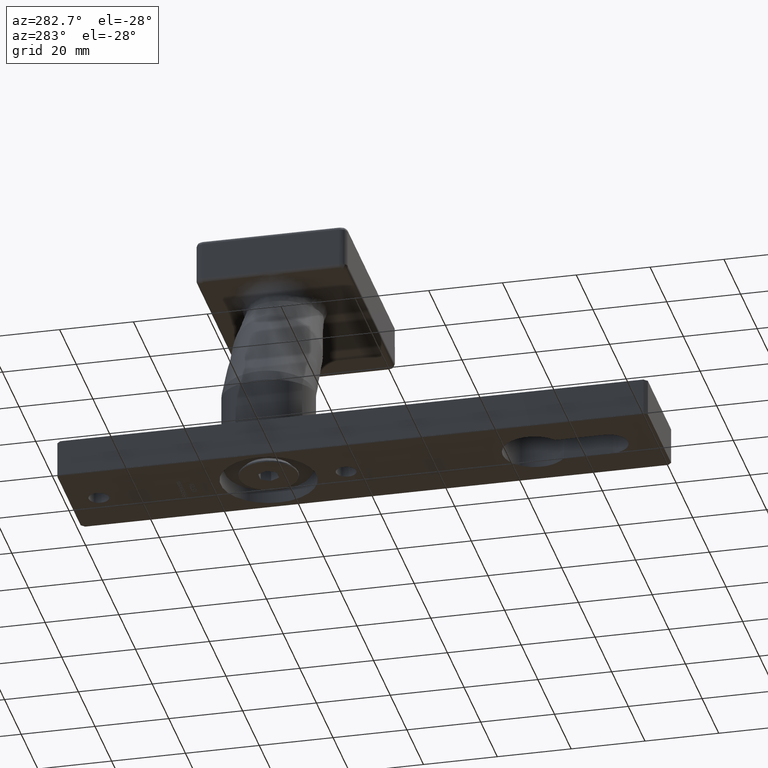
[diagram: clean part render]
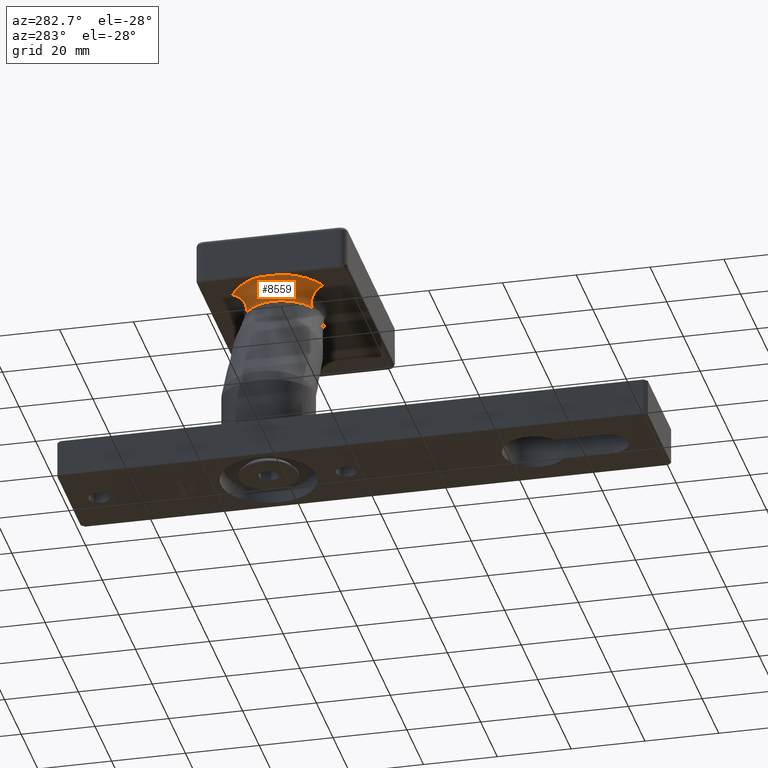
[diagram: same view with one face highlighted and labeled with its STEP entity id]
A machine part, auxiliary view. The second image highlights one B-rep face of the part: STEP entity #8559.
In plain terms, the highlighted face is a freeform B-spline surface patch.
Its self-contained STEP definition (entity closure, byte-faithful):
#45 = CARTESIAN_POINT ( 'NONE',  ( 4.042542119547880120, -5.153737191863888789, 52.89213494729145282 ) ) ;
#82 = CARTESIAN_POINT ( 'NONE',  ( 12.31599355250493133, -8.992921521782777816, 47.01681769696901370 ) ) ;
#112 = ORIENTED_EDGE ( 'NONE', *, *, #12535, .F. ) ;
#167 = CARTESIAN_POINT ( 'NONE',  ( 12.31599355250493133, -8.992921521782777816, 47.01681769696901370 ) ) ;
#263 = CARTESIAN_POINT ( 'NONE',  ( 9.870292012381419511, -11.77616790093112620, 52.48461897648146390 ) ) ;
#318 = CARTESIAN_POINT ( 'NONE',  ( 6.468101262939045526, -8.892341286243901521, 52.72252332921367213 ) ) ;
#422 = CARTESIAN_POINT ( 'NONE',  ( 12.37054231407270244, 8.983236350999282749, 49.76633152380375691 ) ) ;
#572 = CARTESIAN_POINT ( 'NONE',  ( 6.786171144519215659, -3.751802965214265040, 46.64970949677716305 ) ) ;
#582 = CARTESIAN_POINT ( 'NONE',  ( 9.933257321086196967, 11.83985176776301174, 52.48021601318070140 ) ) ;
#672 = CARTESIAN_POINT ( 'NONE',  ( 11.10698094452765261, 4.276055457153937311, 52.39814126208980127 ) ) ;
#713 = CARTESIAN_POINT ( 'NONE',  ( 5.984581105137253054, 0.9669086653049863145, 46.60018907125100895 ) ) ;
#757 = CARTESIAN_POINT ( 'NONE',  ( 4.190109713363929345, 5.405562251814007624, 52.88181601590969194 ) ) ;
#798 = CARTESIAN_POINT ( 'NONE',  ( 10.60743197055949594, 8.081810730765729645, 46.89832308600082200 ) ) ;
#803 = VERTEX_POINT ( 'NONE', #12475 ) ;
#810 = CARTESIAN_POINT ( 'NONE',  ( 7.244939456612621953, 4.605431466890313352, 46.67848962275709823 ) ) ;
#856 = CARTESIAN_POINT ( 'NONE',  ( 3.495860947627186910, -3.526322930853172277, 52.93036261879339577 ) ) ;
#903 = CARTESIAN_POINT ( 'NONE',  ( 13.61070391398345514, -7.489166761206139000, 52.22306389684690231 ) ) ;
#949 = CARTESIAN_POINT ( 'NONE',  ( 9.470641077835535881, -7.183472976621087192, 46.82244462674607632 ) ) ;
#999 = CARTESIAN_POINT ( 'NONE',  ( 8.855092750242379296, -11.12029479090919715, 52.55560862437024383 ) ) ;
#1023 = VERTEX_POINT ( 'NONE', #3042 ) ;
#1044 = CARTESIAN_POINT ( 'NONE',  ( 9.664540156136261828, -7.344801931713387688, 46.83531915648251953 ) ) ;
#1079 = CARTESIAN_POINT ( 'NONE',  ( 6.768182617438063708, -3.713718466022148501, 46.64858767042117194 ) ) ;
#1107 = CARTESIAN_POINT ( 'NONE',  ( 12.40519175471635727, -8.903780847882854843, 49.46880111316510664 ) ) ;
#1144 = ORIENTED_EDGE ( 'NONE', *, *, #4606, .F. ) ;
#1157 = CARTESIAN_POINT ( 'NONE',  ( 12.40381067722646335, -8.840014493499296577, 47.61676260229412350 ) ) ;
#1315 = CARTESIAN_POINT ( 'NONE',  ( 3.430243526255855269, 3.271869030510937471, 52.93495103587785167 ) ) ;
#1444 = CARTESIAN_POINT ( 'NONE',  ( 7.511526953077793500, -9.955394314512934884, 52.64955989720230889 ) ) ;
#1515 = CARTESIAN_POINT ( 'NONE',  ( 11.09915105683650083, 11.59781311276438309, 52.34095684744486476 ) ) ;
#1597 = CARTESIAN_POINT ( 'NONE',  ( 12.31599355250493133, -8.992921521782777816, 47.01681769696901370 ) ) ;
#1697 = CARTESIAN_POINT ( 'NONE',  ( 8.091768442994835553, -5.798235013128826942, 46.73239105526677406 ) ) ;
#1744 = CARTESIAN_POINT ( 'NONE',  ( 10.48399718088366228, 2.339354361970658491, 52.44170453057826364 ) ) ;
#1785 = CARTESIAN_POINT ( 'NONE',  ( 3.052624222068364812, -1.280504398541090882, 52.96135674994798137 ) ) ;
#1833 = CARTESIAN_POINT ( 'NONE',  ( 10.40234937989617769, 1.876852318292917765, 52.44741390099747491 ) ) ;
#1877 = CARTESIAN_POINT ( 'NONE',  ( 3.200403543271365780, -2.249830538464799634, 52.95102301314507542 ) ) ;
#1915 = CARTESIAN_POINT ( 'NONE',  ( 8.934239901695644193, 6.697214093603168550, 46.78710412231193772 ) ) ;
#1953 = CARTESIAN_POINT ( 'NONE',  ( 6.281111619919860445, -2.393640276278628853, 46.61841387222123956 ) ) ;
#1965 = CARTESIAN_POINT ( 'NONE',  ( 7.490272306905688460, -4.990430221857026005, 46.69398124634582814 ) ) ;
#2053 = CARTESIAN_POINT ( 'NONE',  ( 10.62218755856018504, -2.940058586198223800, 52.43204131803094015 ) ) ;
#2079 = CARTESIAN_POINT ( 'NONE',  ( 12.03574202774404256, -9.695326832571119269, 51.09957714590039046 ) ) ;
#2086 = ORIENTED_EDGE ( 'NONE', *, *, #8618, .T. ) ;
#2100 = VERTEX_POINT ( 'NONE', #167 ) ;
#2141 = CARTESIAN_POINT ( 'NONE',  ( 10.71755471380843794, -3.268185866034259757, 52.42537259688749174 ) ) ;
#2174 = CARTESIAN_POINT ( 'NONE',  ( 12.34250296714419193, -8.945456980765376542, 47.16174776677892311 ) ) ;
#2308 = CARTESIAN_POINT ( 'NONE',  ( 3.683463949594658615, -4.232874476556634846, 52.91724413895478563 ) ) ;
#2493 = B_SPLINE_CURVE_WITH_KNOTS ( 'NONE', 3,
 ( #3653, #3464, #11011, #6622 ),
 .UNSPECIFIED., .F., .F.,
 ( 4, 4 ),
 ( 0.000000000000000000, 0.0001249764416995272456 ),
 .UNSPECIFIED. ) ;
#2519 = CARTESIAN_POINT ( 'NONE',  ( 10.96271098794633758, 11.87053409991226793, 52.39656896083165805 ) ) ;
#2558 = CARTESIAN_POINT ( 'NONE',  ( 12.36576580725411212, 8.904673070235238796, 47.31295079628307576 ) ) ;
#2567 = CARTESIAN_POINT ( 'NONE',  ( 8.861359122382053144, 11.12322531557452443, 52.55517043694405288 ) ) ;
#2812 = CARTESIAN_POINT ( 'NONE',  ( 6.901359382691635957, 3.966161128069922714, 46.65693561352333063 ) ) ;
#2858 = CARTESIAN_POINT ( 'NONE',  ( 10.51675958846421821, 2.495189016507820767, 52.43941355985541719 ) ) ;
#2898 = CARTESIAN_POINT ( 'NONE',  ( 6.351776623708961900, -2.625647047925274258, 46.62277338404660298 ) ) ;
#2900 = CARTESIAN_POINT ( 'NONE',  ( 9.868468800876071256, 11.77518120084367226, 52.48474646784952569 ) ) ;
#2908 = CARTESIAN_POINT ( 'NONE',  ( 3.408163854296091699, 3.252333217262747489, 52.93649499694671334 ) ) ;
#2943 = CARTESIAN_POINT ( 'NONE',  ( 7.519131414538449576, 5.032511991293303844, 46.69581363235644034 ) ) ;
#2955 = CARTESIAN_POINT ( 'NONE',  ( 3.262572853121448180, -2.573896851004204844, 52.94667571150655050 ) ) ;
#2996 = CARTESIAN_POINT ( 'NONE',  ( 12.22945883308275761, -9.288415111413661052, 50.46943196552162902 ) ) ;
#3008 = CARTESIAN_POINT ( 'NONE',  ( 7.402274582290419680, 9.847122075813526720, 52.65719956718873362 ) ) ;
#3042 = CARTESIAN_POINT ( 'NONE',  ( 3.430243526255855269, 3.271869030510937471, 52.93495103587785167 ) ) ;
#3052 = CARTESIAN_POINT ( 'NONE',  ( 3.375840015789512982, -2.181905302021735160, 52.93875529992348561 ) ) ;
#3064 =( BOUNDED_SURFACE ( )  B_SPLINE_SURFACE ( 3, 2, ( 
 ( #3764, #4912, #8930 ),
 ( #582, #12292, #7888 ),
 ( #2567, #9987, #3667 ),
 ( #12477, #11341, #10310 ),
 ( #3008, #12330, #10260 ),
 ( #8293, #10206, #13451 ),
 ( #7132, #6037, #1915 ),
 ( #9168, #672, #9253 ),
 ( #10393, #7226, #5156 ),
 ( #3905, #4083, #9346 ),
 ( #13495, #11445, #810 ),
 ( #757, #2858, #2812 ),
 ( #5067, #1744, #12519 ),
 ( #8121, #13402, #6218 ),
 ( #8209, #1833, #5013 ),
 ( #2908, #3991, #7085 ),
 ( #12426, #9305, #4961 ),
 ( #13541, #7053, #713 ),
 ( #9212, #8169, #6121 ),
 ( #11253, #7183, #4040 ),
 ( #1785, #8249, #3938 ),
 ( #1877, #11398, #11299 ),
 ( #2955, #10348, #12377 ),
 ( #6077, #5104, #6172 ),
 ( #856, #10445, #5325 ),
 ( #3137, #10524, #9555 ),
 ( #3094, #13725, #1079 ),
 ( #6312, #2053, #13678 ),
 ( #8506, #2141, #1965 ),
 ( #9479, #9432, #3229 ),
 ( #11659, #9516, #4126 ),
 ( #10614, #11489, #4304 ),
 ( #6357, #5370, #7364 ),
 ( #4219, #6258, #949 ),
 ( #13643, #12692, #1044 ),
 ( #999, #12737, #8419 ),
 ( #11575, #10485, #5275 ),
 ( #7322, #903, #12613 ) ),
 .UNSPECIFIED., .F., .F., .F. ) 
 B_SPLINE_SURFACE_WITH_KNOTS ( ( 4, 2, 2, 2, 2, 2, 2, 2, 2, 2, 2, 2, 2, 2, 2, 2, 2, 2, 4 ),
 ( 3, 3 ),
 ( 0.03537380697316577088, 0.03925474045560836678, 0.04022497382621902096, 0.04119520719682966819, 0.04313567393805096961, 0.04507614067927226409, 0.04604637404988291827, 0.04701660742049356551, 0.04895707416171486692, 0.05089754090293616140, 0.05283800764415745588, 0.05380824101476811006, 0.05477847438537875729, 0.05671894112660005871, 0.05865940786782135319, 0.06059987460904265461, 0.06157010797965330184, 0.06254034135026395602, 0.06642127483270654498 ),
 ( 0.000000000000000000, 1.000000000000000000 ),
 .UNSPECIFIED. ) 
 GEOMETRIC_REPRESENTATION_ITEM ( )  RATIONAL_B_SPLINE_SURFACE ( (
 ( 1.000000000000000000, 0.5846525121130281555, 1.000000000000000000),
 ( 1.000000000000000000, 0.5707568979857259306, 1.000000000000000000),
 ( 1.000000000000000000, 0.5575857227039063835, 1.000000000000000000),
 ( 1.000000000000000000, 0.5422559233421557767, 1.000000000000000000),
 ( 1.000000000000000000, 0.5392474165293741351, 1.000000000000000000),
 ( 1.000000000000000000, 0.5333558913315780137, 1.000000000000000000),
 ( 1.000000000000000000, 0.5304633644936586068, 1.000000000000000000),
 ( 1.000000000000000000, 0.5220621988139317882, 1.000000000000000000),
 ( 1.000000000000000000, 0.5168799014721782159, 1.000000000000000000),
 ( 1.000000000000000000, 0.5074062122402178687, 1.000000000000000000),
 ( 1.000000000000000000, 0.5031145391817841706, 1.000000000000000000),
 ( 1.000000000000000000, 0.4974232480447926541, 1.000000000000000000),
 ( 1.000000000000000000, 0.4956509358255739572, 1.000000000000000000),
 ( 1.000000000000000000, 0.4923748108754665287, 1.000000000000000000),
 ( 1.000000000000000000, 0.4908719823712693331, 1.000000000000000000),
 ( 1.000000000000000000, 0.4868551233327025884, 1.000000000000000000),
 ( 1.000000000000000000, 0.4848047133586637081, 1.000000000000000000),
 ( 1.000000000000000000, 0.4820355427674986037, 1.000000000000000000),
 ( 1.000000000000000000, 0.4813430293142412220, 1.000000000000000000),
 ( 1.000000000000000000, 0.4813210182643692381, 1.000000000000000000),
 ( 1.000000000000000000, 0.4819882237000772118, 1.000000000000000000),
 ( 1.000000000000000000, 0.4840128107812630143, 1.000000000000000000),
 ( 1.000000000000000000, 0.4848635267022397000, 1.000000000000000000),
 ( 1.000000000000000000, 0.4868796271783968899, 1.000000000000000000),
 ( 1.000000000000000000, 0.4880449409423277540, 1.000000000000000000),
 ( 1.000000000000000000, 0.4919894266744037070, 1.000000000000000000),
 ( 1.000000000000000000, 0.4952155092828456340, 1.000000000000000000),
 ( 1.000000000000000000, 0.5027800556031802870, 1.000000000000000000),
 ( 1.000000000000000000, 0.5071523590384898750, 1.000000000000000000),
 ( 1.000000000000000000, 0.5166899703710211567, 1.000000000000000000),
 ( 1.000000000000000000, 0.5218709971138940640, 1.000000000000000000),
 ( 1.000000000000000000, 0.5301894977873757853, 1.000000000000000000),
 ( 1.000000000000000000, 0.5330539051901191927, 1.000000000000000000),
 ( 1.000000000000000000, 0.5389584759499276290, 1.000000000000000000),
 ( 1.000000000000000000, 0.5420085291336464994, 1.000000000000000000),
 ( 1.000000000000000000, 0.5575104236850506600, 1.000000000000000000),
 ( 1.000000000000000000, 0.5707617844079445613, 1.000000000000000000),
 ( 1.000000000000000000, 0.5846523913959710272, 1.000000000000000000) ) ) 
 REPRESENTATION_ITEM ( '' )  SURFACE ( )  );
#3094 = CARTESIAN_POINT ( 'NONE',  ( 4.025191124016884281, -5.060413847897613060, 52.89334824709295191 ) ) ;
#3137 = CARTESIAN_POINT ( 'NONE',  ( 3.786429153211571030, -4.457027595424664312, 52.91004411052472989 ) ) ;
#3229 = CARTESIAN_POINT ( 'NONE',  ( 8.075683686361905700, -5.779112725120456595, 46.73135613765875007 ) ) ;
#3286 = ORIENTED_EDGE ( 'NONE', *, *, #8808, .F. ) ;
#3355 = ORIENTED_EDGE ( 'NONE', *, *, #4885, .F. ) ;
#3392 = CARTESIAN_POINT ( 'NONE',  ( 4.989650479165022467, -6.909370638943700627, 52.82590667913838445 ) ) ;
#3459 = CARTESIAN_POINT ( 'NONE',  ( 3.345183358240699345, 1.091367913552323543, 52.92620764971913871 ) ) ;
#3464 = CARTESIAN_POINT ( 'NONE',  ( 10.80303358146908721, 12.18822255699701174, 52.41878390182683489 ) ) ;
#3467 = CARTESIAN_POINT ( 'NONE',  ( 11.49255668141538322, 10.80628879843630941, 52.03307886548293482 ) ) ;
#3474 = B_SPLINE_CURVE_WITH_KNOTS ( 'NONE', 3,
 ( #5750, #2900, #4951, #13395, #13533, #12325, #11388, #13488, #10386, #6073, #7220, #13445, #9162, #5006 ),
 .UNSPECIFIED., .F., .F.,
 ( 4, 2, 2, 2, 2, 2, 4 ),
 ( 1.734723475976807480E-18, 0.002967415202460029367, 0.004451122803690041665, 0.005934830404920055265, 0.008902245607380079861, 0.01038595320861009259, 0.01186966080984010359 ),
 .UNSPECIFIED. ) ;
#3475 = VERTEX_POINT ( 'NONE', #10854 ) ;
#3610 = CARTESIAN_POINT ( 'NONE',  ( 11.36369249718031149, 11.06648281561502500, 52.16021806592834054 ) ) ;
#3653 = CARTESIAN_POINT ( 'NONE',  ( 10.82195695938761304, 12.15057328108254353, 52.41615120799015415 ) ) ;
#3667 = CARTESIAN_POINT ( 'NONE',  ( 10.66055571235282784, 8.119457569562072763, 46.90190524853878173 ) ) ;
#3764 = CARTESIAN_POINT ( 'NONE',  ( 11.09527130415104246, 12.43387479193253498, 52.39896007991119831 ) ) ;
#3905 = CARTESIAN_POINT ( 'NONE',  ( 4.938827484981487714, 6.838081826010930619, 52.82946056909504762 ) ) ;
#3931 = CARTESIAN_POINT ( 'NONE',  ( 6.608217574321636256, 3.327057807514032017, 46.63865909740556503 ) ) ;
#3938 = CARTESIAN_POINT ( 'NONE',  ( 5.981795989446116124, -0.9407910943137437476, 46.60001876500678719 ) ) ;
#3991 = CARTESIAN_POINT ( 'NONE',  ( 10.34028697009840059, 1.424818556906116251, 52.45175372746396647 ) ) ;
#4032 = CARTESIAN_POINT ( 'NONE',  ( 5.943348285726298919, 0.4848196475501403424, 46.59767015596705164 ) ) ;
#4040 = CARTESIAN_POINT ( 'NONE',  ( 5.942565597501761943, -0.4650731985177291028, 46.59762227293646930 ) ) ;
#4072 = CARTESIAN_POINT ( 'NONE',  ( 12.32046660237289259, -9.092872253882886113, 50.05233081090034375 ) ) ;
#4075 = CARTESIAN_POINT ( 'NONE',  ( 6.158700615772970899, -1.921721186343149368, 46.61087589027653877 ) ) ;
#4083 = CARTESIAN_POINT ( 'NONE',  ( 10.72354306631157073, 3.286605333941607032, 52.42495385049203094 ) ) ;
#4116 = CARTESIAN_POINT ( 'NONE',  ( 6.590836435935134574, -3.310357304982623372, 46.63756790075425585 ) ) ;
#4126 = CARTESIAN_POINT ( 'NONE',  ( 8.396399592386311284, -6.151936719011892762, 46.75201684937120206 ) ) ;
#4153 = CARTESIAN_POINT ( 'NONE',  ( 10.77832077936895061, -12.22167922063107248, 52.42112341965302846 ) ) ;
#4219 = CARTESIAN_POINT ( 'NONE',  ( 7.379445535973031767, -9.825612898153643471, 52.65879592961743327 ) ) ;
#4249 = CARTESIAN_POINT ( 'NONE',  ( 11.83852083043216652, -10.10204996346368667, 51.53194083807734671 ) ) ;
#4289 = CARTESIAN_POINT ( 'NONE',  ( 12.43201187589269985, -8.839647839162530829, 49.16541674094136738 ) ) ;
#4304 = CARTESIAN_POINT ( 'NONE',  ( 8.917043559547551013, -6.680494726654574222, 46.78597834464364524 ) ) ;
#4315 = VERTEX_POINT ( 'NONE', #7200 ) ;
#4504 = ORIENTED_EDGE ( 'NONE', *, *, #6267, .F. ) ;
#4591 = CARTESIAN_POINT ( 'NONE',  ( 10.82195695938761304, 12.15057328108254353, 52.41615120799015415 ) ) ;
#4606 = EDGE_CURVE ( 'NONE', #6545, #6220, #2493, .T. ) ;
#4682 = CARTESIAN_POINT ( 'NONE',  ( 12.12105745347031771, 9.517519487696652902, 50.86081306758244835 ) ) ;
#4885 = EDGE_CURVE ( 'NONE', #803, #2100, #8892, .T. ) ;
#4912 = CARTESIAN_POINT ( 'NONE',  ( 13.61070988173913676, 7.489171766520350992, 52.22306347954073402 ) ) ;
#4951 = CARTESIAN_POINT ( 'NONE',  ( 9.043854588782458848, 11.22711336926486858, 52.54240911078454701 ) ) ;
#4961 = CARTESIAN_POINT ( 'NONE',  ( 6.148128790803571775, 1.920951346366076118, 46.61022377011676099 ) ) ;
#5006 = CARTESIAN_POINT ( 'NONE',  ( 3.430243526255855269, 3.271869030510937471, 52.93495103587785167 ) ) ;
#5013 = CARTESIAN_POINT ( 'NONE',  ( 6.508698945366554689, 3.075719827157143538, 46.63248443163389823 ) ) ;
#5015 = EDGE_CURVE ( 'NONE', #4315, #3475, #13036, .T. ) ;
#5016 = FACE_OUTER_BOUND ( 'NONE', #9398, .T. ) ;
#5067 = CARTESIAN_POINT ( 'NONE',  ( 4.058196499262231249, 5.108046916565872841, 52.89104028642501731 ) ) ;
#5104 = CARTESIAN_POINT ( 'NONE',  ( 10.34228001523904616, -1.411264650082871164, 52.45161436016356049 ) ) ;
#5156 = CARTESIAN_POINT ( 'NONE',  ( 8.087426676971075423, 5.793064862306066765, 46.73211171565557009 ) ) ;
#5262 = CARTESIAN_POINT ( 'NONE',  ( 11.09915105683640668, -11.59781311276456428, 52.34095684744491450 ) ) ;
#5275 = CARTESIAN_POINT ( 'NONE',  ( 11.51968004608541207, -8.632426262315627596, 46.96066338547061747 ) ) ;
#5325 = CARTESIAN_POINT ( 'NONE',  ( 6.340317123137388045, -2.589372028971262729, 46.62206577708690247 ) ) ;
#5370 = CARTESIAN_POINT ( 'NONE',  ( 11.45611783264946304, -4.939102110274058433, 52.37372723257796991 ) ) ;
#5443 = CARTESIAN_POINT ( 'NONE',  ( 12.41893208684227190, -8.815549403215754865, 47.77173012098317173 ) ) ;
#5535 = B_SPLINE_CURVE_WITH_KNOTS ( 'NONE', 3,
 ( #4591, #2519, #1515, #3610, #3467, #7786, #5746, #10973, #4682, #10834, #11955, #6820, #422, #8919, #13165, #5655, #7923, #11903, #7880, #5598, #2558, #13013, #12974 ),
 .UNSPECIFIED., .F., .F.,
 ( 4, 2, 2, 2, 2, 2, 1, 2, 2, 2, 2, 4 ),
 ( 0.000000000000000000, 0.0009287373604907565037, 0.001857474720981513007, 0.002786212081472269619, 0.003714949441963026015, 0.004179318122208404429, 0.004643686802453783277, 0.005108055482699161258, 0.005572424162944539239, 0.006501161523435316017, 0.006965530203680704406, 0.007429898883926093663 ),
 .UNSPECIFIED. ) ;
#5598 = CARTESIAN_POINT ( 'NONE',  ( 12.40381067722628217, 8.840014493499712245, 47.61676260229192792 ) ) ;
#5631 = CARTESIAN_POINT ( 'NONE',  ( 6.803126966525676167, -9.257053085944669135, 52.69909604984272988 ) ) ;
#5655 = CARTESIAN_POINT ( 'NONE',  ( 12.44150841875573832, 8.815206548896984629, 49.00985862404439075 ) ) ;
#5746 = CARTESIAN_POINT ( 'NONE',  ( 11.83852083043243653, 10.10204996346316975, 51.53194083807687775 ) ) ;
#5750 = CARTESIAN_POINT ( 'NONE',  ( 10.74853667507223420, 12.25146332492776935, 52.42320612711309025 ) ) ;
#6037 = CARTESIAN_POINT ( 'NONE',  ( 11.37135312540974397, 4.786998731101583360, 52.37965455831544404 ) ) ;
#6073 = CARTESIAN_POINT ( 'NONE',  ( 4.283765035531009069, 5.617695936889130159, 52.87526699780904238 ) ) ;
#6077 = CARTESIAN_POINT ( 'NONE',  ( 3.410304253867869839, -3.211803162499409225, 52.93634532562840178 ) ) ;
#6097 = CARTESIAN_POINT ( 'NONE',  ( 10.80303358146983328, -12.18822255699589441, 52.41878390182675673 ) ) ;
#6113 = CARTESIAN_POINT ( 'NONE',  ( 6.274699219707589037, 2.407334881539604510, 46.61800220123953409 ) ) ;
#6121 = CARTESIAN_POINT ( 'NONE',  ( 5.943861723486531190, 0.4882065368106677239, 46.59770156689246789 ) ) ;
#6161 = CARTESIAN_POINT ( 'NONE',  ( 6.806364316657061764, 3.772816791691715466, 46.65100092502471085 ) ) ;
#6172 = CARTESIAN_POINT ( 'NONE',  ( 6.271130482874227141, -2.358647364694923088, 46.61779855504964587 ) ) ;
#6201 = EDGE_CURVE ( 'NONE', #6545, #6967, #5535, .T. ) ;
#6218 = CARTESIAN_POINT ( 'NONE',  ( 6.598442811940286923, 3.303263924956851394, 46.63805186484079712 ) ) ;
#6220 = VERTEX_POINT ( 'NONE', #11013 ) ;
#6251 = CARTESIAN_POINT ( 'NONE',  ( 9.467948240645123192, 7.190545036819872671, 46.82218784353789687 ) ) ;
#6258 = CARTESIAN_POINT ( 'NONE',  ( 11.65875352673066878, -5.275944161074448857, 52.35955756449389042 ) ) ;
#6267 = EDGE_CURVE ( 'NONE', #2100, #6967, #8709, .T. ) ;
#6312 = CARTESIAN_POINT ( 'NONE',  ( 4.590474663394775057, -6.233906692034186570, 52.85381977134011322 ) ) ;
#6343 = CARTESIAN_POINT ( 'NONE',  ( 11.72874813715277043, -10.32653842932734634, 51.72006139532401647 ) ) ;
#6357 = CARTESIAN_POINT ( 'NONE',  ( 6.914872358970948873, -9.366768244811913391, 52.69128205079966420 ) ) ;
#6545 = VERTEX_POINT ( 'NONE', #11601 ) ;
#6622 = CARTESIAN_POINT ( 'NONE',  ( 10.74853667507223420, 12.25146332492776935, 52.42320612711309025 ) ) ;
#6820 = CARTESIAN_POINT ( 'NONE',  ( 12.32046660237310221, 9.092872253882349654, 50.05233081089906477 ) ) ;
#6900 = CARTESIAN_POINT ( 'NONE',  ( 10.60223948542678940, -8.079373945530916146, 46.89796263983667046 ) ) ;
#6967 = VERTEX_POINT ( 'NONE', #12796 ) ;
#6986 = ORIENTED_EDGE ( 'NONE', *, *, #6201, .T. ) ;
#6997 = CARTESIAN_POINT ( 'NONE',  ( 8.407758581020059907, -6.163808224191554608, 46.75275592814637093 ) ) ;
#7053 = CARTESIAN_POINT ( 'NONE',  ( 10.27913686037367924, 0.5618210536895545948, 52.45602975967565840 ) ) ;
#7085 = CARTESIAN_POINT ( 'NONE',  ( 6.269421712461979546, 2.388499865293028268, 46.61767733551798898 ) ) ;
#7123 = CARTESIAN_POINT ( 'NONE',  ( 8.097315610783507367, 5.804760534563613739, 46.73274821268791612 ) ) ;
#7132 = CARTESIAN_POINT ( 'NONE',  ( 6.712238694255953320, 9.153707140153196420, 52.70545157696560068 ) ) ;
#7183 = CARTESIAN_POINT ( 'NONE',  ( 10.27134869779305326, -0.2705855587212177005, 52.45657436107889282 ) ) ;
#7200 = CARTESIAN_POINT ( 'NONE',  ( 3.430243526260460030, -3.271869030528444355, 52.93495103587752482 ) ) ;
#7217 = CARTESIAN_POINT ( 'NONE',  ( 8.416055359447112139, 6.173336824825615743, 46.75329103207528192 ) ) ;
#7220 = CARTESIAN_POINT ( 'NONE',  ( 4.077415242002534690, 5.166220289404399146, 52.88969638101564641 ) ) ;
#7226 = CARTESIAN_POINT ( 'NONE',  ( 10.96304271747507819, 3.942398586338579758, 52.40820640342590053 ) ) ;
#7256 = CARTESIAN_POINT ( 'NONE',  ( 12.37054258456067934, -8.983235828168844250, 49.76633172401582783 ) ) ;
#7306 = CARTESIAN_POINT ( 'NONE',  ( 10.82195695938682611, -12.15057328108217582, 52.41615120799012573 ) ) ;
#7309 = CARTESIAN_POINT ( 'NONE',  ( 6.106905714533886531, -1.680977476084952071, 46.60769444022923125 ) ) ;
#7322 = CARTESIAN_POINT ( 'NONE',  ( 11.09526121355899164, -12.43386963360475228, 52.39896078551414860 ) ) ;
#7364 = CARTESIAN_POINT ( 'NONE',  ( 9.097210585528312521, -6.851550281542258425, 46.79779559358583896 ) ) ;
#7480 = CARTESIAN_POINT ( 'NONE',  ( 5.540963330116546182, -7.735034461489624924, 52.78735512908785665 ) ) ;
#7529 = CARTESIAN_POINT ( 'NONE',  ( 12.45739211683774350, -8.766971166763115164, 48.54508406048081781 ) ) ;
#7786 = CARTESIAN_POINT ( 'NONE',  ( 11.72874813715316478, 10.32653842932690047, 51.72006139532363278 ) ) ;
#7880 = CARTESIAN_POINT ( 'NONE',  ( 12.41893208684223104, 8.815549403216126123, 47.77173012098099747 ) ) ;
#7888 = CARTESIAN_POINT ( 'NONE',  ( 11.51938806585268793, 8.632294495879245133, 46.96064278970090555 ) ) ;
#7923 = CARTESIAN_POINT ( 'NONE',  ( 12.45739211683773107, 8.766971166763035228, 48.54508406047889224 ) ) ;
#8121 = CARTESIAN_POINT ( 'NONE',  ( 3.815174393594729541, 4.500168193882593037, 52.90803404750613481 ) ) ;
#8169 = CARTESIAN_POINT ( 'NONE',  ( 10.27160083935931212, 0.2840318157015198630, 52.45655672958915261 ) ) ;
#8202 = CARTESIAN_POINT ( 'NONE',  ( 7.258503235646465157, 4.627719972618685951, 46.67934487340016148 ) ) ;
#8209 = CARTESIAN_POINT ( 'NONE',  ( 3.704140723826553572, 4.189651053797466496, 52.91579827805142600 ) ) ;
#8249 = CARTESIAN_POINT ( 'NONE',  ( 10.27860466545405238, -0.5465161104245159773, 52.45606697437306565 ) ) ;
#8293 = CARTESIAN_POINT ( 'NONE',  ( 6.938546668269993667, 9.391089732570616633, 52.68962658182540082 ) ) ;
#8375 = CARTESIAN_POINT ( 'NONE',  ( 6.913621315592139993, 3.990330950929632081, 46.65770285058580669 ) ) ;
#8419 = CARTESIAN_POINT ( 'NONE',  ( 10.65554575688566352, -8.117390289830442640, 46.90155498024605407 ) ) ;
#8506 = CARTESIAN_POINT ( 'NONE',  ( 4.919611715065048685, -6.807013692302884778, 52.83080426662431961 ) ) ;
#8559 = ADVANCED_FACE ( 'NONE', ( #5016 ), #3064, .F. ) ;
#8578 = CARTESIAN_POINT ( 'NONE',  ( 12.44150841875562463, -8.815206548897220884, 49.00985862404615290 ) ) ;
#8618 = EDGE_CURVE ( 'NONE', #4315, #1023, #12166, .T. ) ;
#8709 = B_SPLINE_CURVE_WITH_KNOTS ( 'NONE', 3,
 ( #1597, #9206, #6900, #10069, #12178, #6997, #1697, #9114, #13261, #572, #4116, #2898, #1953, #4075, #7309, #10343, #11481, #4032, #13443, #9295, #6113, #11437, #3931, #6161, #8375, #8202, #2943, #7123, #7217, #11387, #6251, #798, #13632, #9380 ),
 .UNSPECIFIED., .F., .F.,
 ( 4, 2, 2, 2, 2, 2, 2, 2, 2, 2, 2, 2, 2, 2, 2, 2, 4 ),
 ( 0.000000000000000000, 0.002911460854264418582, 0.004367191281396629390, 0.005822921708528839765, 0.007278652135661050140, 0.008734382562793260515, 0.009462247776359365703, 0.01019011298992546916, 0.01164584341705767780, 0.01310157384418988470, 0.01455730427132208987, 0.01528516948488819333, 0.01601303469845429331, 0.01746876512558649674, 0.01892449555271870365, 0.02038022597985090362, 0.02329168683411530355 ),
 .UNSPECIFIED. ) ;
#8808 = EDGE_CURVE ( 'NONE', #3475, #803, #9192, .T. ) ;
#8812 = CARTESIAN_POINT ( 'NONE',  ( 9.043800606289094546, -11.22753386207472559, 52.54241288560822909 ) ) ;
#8892 = B_SPLINE_CURVE_WITH_KNOTS ( 'NONE', 3,
 ( #7306, #11560, #5262, #12645, #13579, #6343, #4249, #2079, #10551, #2996, #10380, #4072, #7256, #1107, #4289, #8578, #7529, #11649, #5443, #1157, #12771, #2174, #82 ),
 .UNSPECIFIED., .F., .F.,
 ( 4, 2, 2, 2, 2, 2, 1, 2, 2, 2, 2, 4 ),
 ( 0.000000000000000000, 0.0009287373604904877299, 0.001857474720980975460, 0.002786212081471462973, 0.003714949441961950920, 0.004179318122207202266, 0.004643686802452455346, 0.005108055482697706692, 0.005572424162942958906, 0.006501161523433464200, 0.006965530203678706872, 0.007429898883923949544 ),
 .UNSPECIFIED. ) ;
#8919 = CARTESIAN_POINT ( 'NONE',  ( 12.40519175471646030, 8.903780847882435623, 49.46880111316355766 ) ) ;
#8930 = CARTESIAN_POINT ( 'NONE',  ( 12.44761915771772642, 9.053492257174882596, 47.02608548926846765 ) ) ;
#9114 = CARTESIAN_POINT ( 'NONE',  ( 7.511163323598893271, -5.020965140561632012, 46.69530749699396210 ) ) ;
#9162 = CARTESIAN_POINT ( 'NONE',  ( 3.557583022380093496, 3.755139485789623865, 52.92604659087938757 ) ) ;
#9168 = CARTESIAN_POINT ( 'NONE',  ( 6.058570393407815224, 8.420449227569532624, 52.75116051731244227 ) ) ;
#9192 = B_SPLINE_CURVE_WITH_KNOTS ( 'NONE', 3,
 ( #10417, #4153, #6097, #9323 ),
 .UNSPECIFIED., .F., .F.,
 ( 4, 4 ),
 ( 0.000000000000000000, 0.0001249764416993572969 ),
 .UNSPECIFIED. ) ;
#9206 = CARTESIAN_POINT ( 'NONE',  ( 11.43168053123738837, -8.580275675416189074, 46.95463468487463388 ) ) ;
#9212 = CARTESIAN_POINT ( 'NONE',  ( 3.005753243790219464, 0.6644961271080798149, 52.96463428803163964 ) ) ;
#9253 = CARTESIAN_POINT ( 'NONE',  ( 8.408262880632245029, 6.165363664499138530, 46.75278307480445505 ) ) ;
#9295 = CARTESIAN_POINT ( 'NONE',  ( 6.151185397215225947, 1.935738557331881271, 46.61041149806563766 ) ) ;
#9305 = CARTESIAN_POINT ( 'NONE',  ( 10.31370274620823579, 1.135310754568033209, 52.45361267748957346 ) ) ;
#9323 = CARTESIAN_POINT ( 'NONE',  ( 10.82195695938682611, -12.15057328108217582, 52.41615120799012573 ) ) ;
#9346 = CARTESIAN_POINT ( 'NONE',  ( 7.505772359913179592, 5.013095023651064963, 46.69496523620557582 ) ) ;
#9380 = CARTESIAN_POINT ( 'NONE',  ( 12.31599355250493133, 8.992921521782784922, 47.01681769696899238 ) ) ;
#9398 = EDGE_LOOP ( 'NONE', ( #12961, #2086, #112, #1144, #6986, #4504, #3355, #3286 ) ) ;
#9432 = CARTESIAN_POINT ( 'NONE',  ( 10.95781000276919670, -3.929965209943533377, 52.40857231048686771 ) ) ;
#9479 = CARTESIAN_POINT ( 'NONE',  ( 5.645723558094652539, -7.889266955838193596, 52.78002958032683978 ) ) ;
#9516 = CARTESIAN_POINT ( 'NONE',  ( 11.10155554659282018, -4.263926377890561170, 52.39852064287548217 ) ) ;
#9555 = CARTESIAN_POINT ( 'NONE',  ( 6.575226725794196092, -3.271773815539301467, 46.63659907591918596 ) ) ;
#9723 = CARTESIAN_POINT ( 'NONE',  ( 4.733170979550686219, -6.477386348663295657, 52.84384147287528322 ) ) ;
#9775 = CARTESIAN_POINT ( 'NONE',  ( 10.74853667507223420, -12.25146332492776935, 52.42320612711309025 ) ) ;
#9987 = CARTESIAN_POINT ( 'NONE',  ( 12.34279742711157724, 6.267624968071125124, 52.31172455534280630 ) ) ;
#10069 = CARTESIAN_POINT ( 'NONE',  ( 9.451939762303441128, -7.177191590422510536, 46.82112514697408301 ) ) ;
#10206 = CARTESIAN_POINT ( 'NONE',  ( 11.46619060528110445, 4.956652728346199410, 52.37302287569352899 ) ) ;
#10260 = CARTESIAN_POINT ( 'NONE',  ( 9.488984126344147896, 7.199015583842461652, 46.82366064974202402 ) ) ;
#10310 = CARTESIAN_POINT ( 'NONE',  ( 9.680308633206964330, 7.357534869277375655, 46.83636938529712523 ) ) ;
#10343 = CARTESIAN_POINT ( 'NONE',  ( 5.983735811536686100, -0.9609729981953158973, 46.60013726745753360 ) ) ;
#10348 = CARTESIAN_POINT ( 'NONE',  ( 10.31472005881626330, -1.119426757445987075, 52.45354154005847391 ) ) ;
#10380 = CARTESIAN_POINT ( 'NONE',  ( 12.26247716776985186, -9.217987714532661414, 50.33241555483171226 ) ) ;
#10386 = CARTESIAN_POINT ( 'NONE',  ( 4.971073075155881149, 6.929968619706620814, 52.82720573777492490 ) ) ;
#10393 = CARTESIAN_POINT ( 'NONE',  ( 5.660299012419097942, 7.908447253015916445, 52.77901036527332224 ) ) ;
#10417 = CARTESIAN_POINT ( 'NONE',  ( 10.74853667507223420, -12.25146332492776935, 52.42320612711309025 ) ) ;
#10445 = CARTESIAN_POINT ( 'NONE',  ( 10.35890627562609190, -1.558204029120824563, 52.45045173877963407 ) ) ;
#10485 = CARTESIAN_POINT ( 'NONE',  ( 12.90682712005943955, -6.898806265112441771, 52.27228375702014773 ) ) ;
#10524 = CARTESIAN_POINT ( 'NONE',  ( 10.41920104405265057, -2.003605362454429883, 52.44623551785564786 ) ) ;
#10551 = CARTESIAN_POINT ( 'NONE',  ( 12.12105745346971553, -9.517519487697107650, 50.86081306758333653 ) ) ;
#10614 = CARTESIAN_POINT ( 'NONE',  ( 6.690861264272877307, -9.130638447580317063, 52.70694643249186129 ) ) ;
#10834 = CARTESIAN_POINT ( 'NONE',  ( 12.22945883308332071, 9.288415111413209857, 50.46943196552055610 ) ) ;
#10854 = CARTESIAN_POINT ( 'NONE',  ( 10.74853667507223420, -12.25146332492776935, 52.42320612711309025 ) ) ;
#10973 = CARTESIAN_POINT ( 'NONE',  ( 12.03574202774434632, 9.695326832570534847, 51.09957714589967992 ) ) ;
#11011 = CARTESIAN_POINT ( 'NONE',  ( 10.77832077934075272, 12.22167922061859180, 52.42112341965216160 ) ) ;
#11013 = CARTESIAN_POINT ( 'NONE',  ( 10.74853667507223420, 12.25146332492776935, 52.42320612711309025 ) ) ;
#11253 = CARTESIAN_POINT ( 'NONE',  ( 3.004151562645296814, -0.6330094258655563078, 52.96474628848785215 ) ) ;
#11299 = CARTESIAN_POINT ( 'NONE',  ( 6.101354535278852076, -1.652599571325308769, 46.60735360612189027 ) ) ;
#11341 = CARTESIAN_POINT ( 'NONE',  ( 11.77704979015235054, 5.458379595130034012, 52.35128548392661685 ) ) ;
#11387 = CARTESIAN_POINT ( 'NONE',  ( 9.103866408454482695, 6.868640811315532169, 46.79817310855449364 ) ) ;
#11388 = CARTESIAN_POINT ( 'NONE',  ( 6.472408960932779287, 8.897345718115504454, 52.72222210562618727 ) ) ;
#11398 = CARTESIAN_POINT ( 'NONE',  ( 10.30383019093767594, -0.9744538710655734626, 52.45430303380059911 ) ) ;
#11437 = CARTESIAN_POINT ( 'NONE',  ( 6.517317199745532363, 3.098501666014589428, 46.63301867292089753 ) ) ;
#11445 = CARTESIAN_POINT ( 'NONE',  ( 10.62933622654687404, 2.965892075157502195, 52.43154143447201676 ) ) ;
#11481 = CARTESIAN_POINT ( 'NONE',  ( 5.943064047289703389, -0.4798062098005730358, 46.59765276693320146 ) ) ;
#11489 = CARTESIAN_POINT ( 'NONE',  ( 11.36254937200578041, -4.770740207453876280, 52.38027017672186503 ) ) ;
#11560 = CARTESIAN_POINT ( 'NONE',  ( 10.96271098794553644, -11.87053409991200326, 52.39656896083162962 ) ) ;
#11575 = CARTESIAN_POINT ( 'NONE',  ( 9.933616776415885141, -11.84003453039165521, 52.48019087761547752 ) ) ;
#11601 = CARTESIAN_POINT ( 'NONE',  ( 10.82195695938761304, 12.15057328108254353, 52.41615120799015415 ) ) ;
#11649 = CARTESIAN_POINT ( 'NONE',  ( 12.45173622040954697, -8.767068644123686028, 48.23555215891587977 ) ) ;
#11659 = CARTESIAN_POINT ( 'NONE',  ( 6.043840616359485551, -8.401975761650160024, 52.75219052366207251 ) ) ;
#11709 = CARTESIAN_POINT ( 'NONE',  ( 3.375840015789759452, 2.181905302003018132, 52.93875529992327955 ) ) ;
#11790 = CARTESIAN_POINT ( 'NONE',  ( 3.430243526260460030, -3.271869030528444355, 52.93495103587752482 ) ) ;
#11903 = CARTESIAN_POINT ( 'NONE',  ( 12.45173622040941730, 8.767068644123721555, 48.23555215891384051 ) ) ;
#11955 = CARTESIAN_POINT ( 'NONE',  ( 12.26247716777006680, 9.217987714532082322, 50.33241555483061802 ) ) ;
#11978 = CARTESIAN_POINT ( 'NONE',  ( 5.837022523497736870, -8.131329478610739514, 52.76665265354812817 ) ) ;
#12073 = CARTESIAN_POINT ( 'NONE',  ( 7.885498499416804030, -10.28918271769243376, 52.62340925920926082 ) ) ;
#12166 = B_SPLINE_CURVE_WITH_KNOTS ( 'NONE', 3,
 ( #12564, #3052, #12921, #3459, #11709, #1315 ),
 .UNSPECIFIED., .F., .F.,
 ( 4, 2, 4 ),
 ( 1.095851745142163513E-15, 0.003272986194878581452, 0.006545972389756066559 ),
 .UNSPECIFIED. ) ;
#12178 = CARTESIAN_POINT ( 'NONE',  ( 9.086906233640824837, -6.852595678262737522, 46.79706033759464390 ) ) ;
#12292 = CARTESIAN_POINT ( 'NONE',  ( 12.90658018668983864, 6.898600060482024787, 52.27230102431754233 ) ) ;
#12325 = CARTESIAN_POINT ( 'NONE',  ( 6.813391808029891195, 9.267850517641521790, 52.69837826220120292 ) ) ;
#12330 = CARTESIAN_POINT ( 'NONE',  ( 11.66899280278786222, 5.292082886936047004, 52.35884156456938854 ) ) ;
#12377 = CARTESIAN_POINT ( 'NONE',  ( 6.151647020172791080, -1.890511017813545802, 46.61044232609898330 ) ) ;
#12426 = CARTESIAN_POINT ( 'NONE',  ( 3.258219487123943825, 2.615280274757473045, 52.94698012851198854 ) ) ;
#12475 = CARTESIAN_POINT ( 'NONE',  ( 10.82195695938682611, -12.15057328108217582, 52.41615120799012573 ) ) ;
#12477 = CARTESIAN_POINT ( 'NONE',  ( 7.640432951495618852, 10.06661041196989714, 52.64054591169254138 ) ) ;
#12519 = CARTESIAN_POINT ( 'NONE',  ( 6.794803343166419651, 3.748427600919130853, 46.65027939853285943 ) ) ;
#12535 = EDGE_CURVE ( 'NONE', #6220, #1023, #3474, .T. ) ;
#12564 = CARTESIAN_POINT ( 'NONE',  ( 3.430243526260460030, -3.271869030528444355, 52.93495103587752482 ) ) ;
#12613 = CARTESIAN_POINT ( 'NONE',  ( 12.44761109674296584, -9.053488599392382596, 47.02608492094889669 ) ) ;
#12645 = CARTESIAN_POINT ( 'NONE',  ( 11.36369249718015872, -11.06648281561534830, 52.16021806592847554 ) ) ;
#12692 = CARTESIAN_POINT ( 'NONE',  ( 11.76798224887409638, -5.444843604125565228, 52.35191954818537141 ) ) ;
#12737 = CARTESIAN_POINT ( 'NONE',  ( 12.33888329670027417, -6.264135071987516845, 52.31199825798464786 ) ) ;
#12771 = CARTESIAN_POINT ( 'NONE',  ( 12.36576580725444074, -8.904673070234673915, 47.31295079628534239 ) ) ;
#12796 = CARTESIAN_POINT ( 'NONE',  ( 12.31599355250493133, 8.992921521782784922, 47.01681769696899238 ) ) ;
#12921 = CARTESIAN_POINT ( 'NONE',  ( 3.345183358241046623, -1.091367913571495762, 52.92620764971923819 ) ) ;
#12961 = ORIENTED_EDGE ( 'NONE', *, *, #5015, .F. ) ;
#12974 = CARTESIAN_POINT ( 'NONE',  ( 12.31599355250493133, 8.992921521782784922, 47.01681769696899238 ) ) ;
#13013 = CARTESIAN_POINT ( 'NONE',  ( 12.34250296714787254, 8.945456980768058841, 47.16174776677656411 ) ) ;
#13036 = B_SPLINE_CURVE_WITH_KNOTS ( 'NONE', 3,
 ( #11790, #2308, #45, #9723, #3392, #7480, #11978, #318, #5631, #1444, #12073, #8812, #263, #9775 ),
 .UNSPECIFIED., .F., .F.,
 ( 4, 2, 2, 2, 2, 2, 4 ),
 ( 0.01843227040895745877, 0.02139135082660648460, 0.02287089103543100271, 0.02435043124425551736, 0.02582997145308003201, 0.02730951166190454665, 0.03026859207955357595 ),
 .UNSPECIFIED. ) ;
#13165 = CARTESIAN_POINT ( 'NONE',  ( 12.43201187589272472, 8.839647839162182663, 49.16541674093966918 ) ) ;
#13261 = CARTESIAN_POINT ( 'NONE',  ( 7.245274464311334484, -4.606091926615722087, 46.67851058482511917 ) ) ;
#13395 = CARTESIAN_POINT ( 'NONE',  ( 7.892100511546314756, 10.29476118194591550, 52.62294760154863127 ) ) ;
#13402 = CARTESIAN_POINT ( 'NONE',  ( 10.42673473977470167, 2.030103295845033795, 52.44570871052216177 ) ) ;
#13443 = CARTESIAN_POINT ( 'NONE',  ( 5.984563750155686535, 0.9697955156647747321, 46.60018782421484218 ) ) ;
#13445 = CARTESIAN_POINT ( 'NONE',  ( 3.713482390976333036, 4.233152293034578406, 52.91514504504942096 ) ) ;
#13451 = CARTESIAN_POINT ( 'NONE',  ( 9.116246898682549116, 6.869159412557356958, 46.79904737243754909 ) ) ;
#13488 = CARTESIAN_POINT ( 'NONE',  ( 5.519658390731901676, 7.749001443942431067, 52.78884491557767689 ) ) ;
#13495 = CARTESIAN_POINT ( 'NONE',  ( 4.615609756288924004, 6.279729231766009612, 52.85206215442612177 ) ) ;
#13533 = CARTESIAN_POINT ( 'NONE',  ( 7.522469413369991642, 9.965482449098928441, 52.64879472583921682 ) ) ;
#13541 = CARTESIAN_POINT ( 'NONE',  ( 3.056065775488197467, 1.316057760729361092, 52.96111609308922397 ) ) ;
#13579 = CARTESIAN_POINT ( 'NONE',  ( 11.49255668141504927, -10.80628879843663270, 52.03307886548311245 ) ) ;
#13632 = CARTESIAN_POINT ( 'NONE',  ( 11.43225589390763730, 8.580544156158104840, 46.95467514315466673 ) ) ;
#13643 = CARTESIAN_POINT ( 'NONE',  ( 7.620799722783379693, -10.04896930741705141, 52.64191880078455910 ) ) ;
#13678 = CARTESIAN_POINT ( 'NONE',  ( 7.224652115961692544, -4.571957481218973385, 46.67721076172571060 ) ) ;
#13725 = CARTESIAN_POINT ( 'NONE',  ( 10.47305946225865902, -2.307986573336640479, 52.44246937035977396 ) ) ;